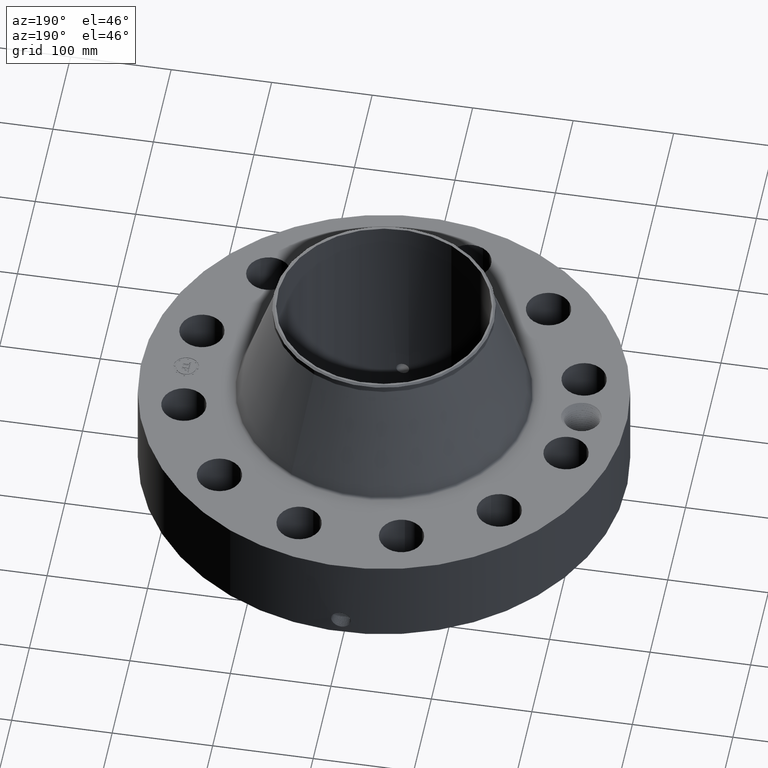
[diagram: clean part render]
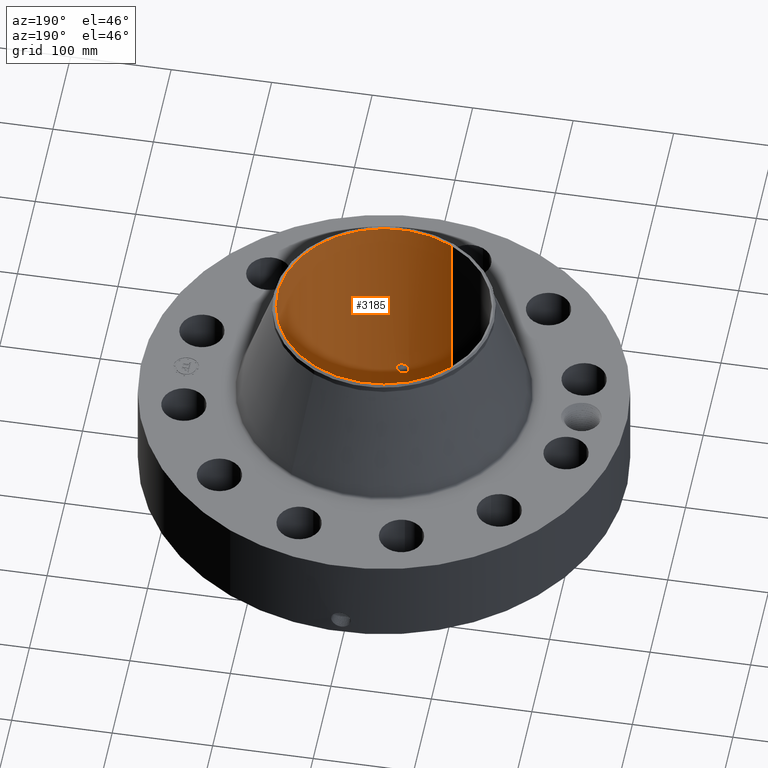
[diagram: same view with one face highlighted and labeled with its STEP entity id]
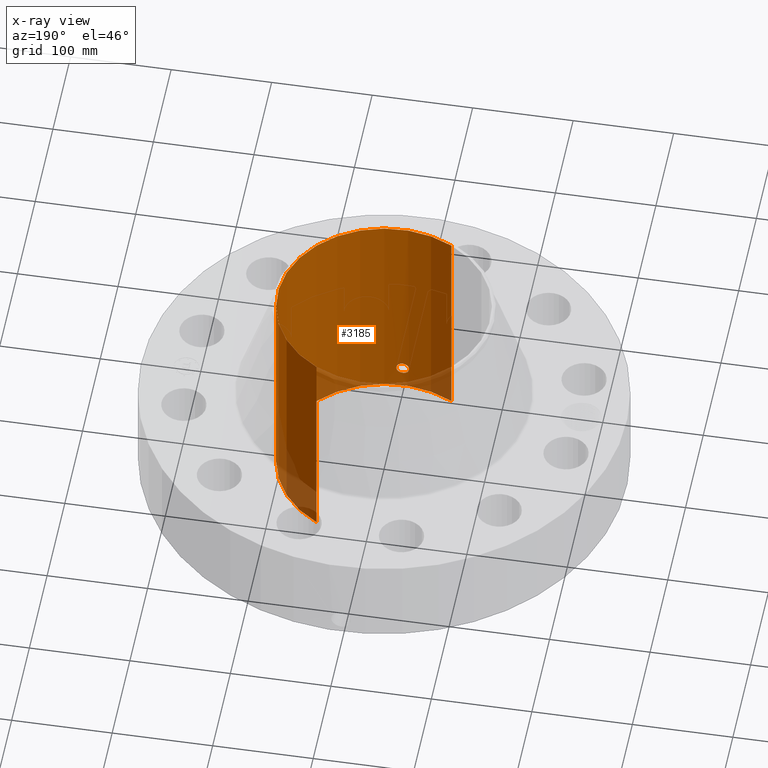
[diagram: x-ray of the same camera — body ghosted, the highlighted face saturated]
A machine part, auxiliary view. The second image highlights one B-rep face of the part: STEP entity #3185.
The next image is the same camera in x-ray: the body ghosted, the highlighted face saturated — about 11% of this face is hidden behind the body in this view.
In plain terms, the highlighted cylindrical surface (partial cylindrical patch) has radius 105.778 mm, axis along (0, 0, -1).
Its self-contained STEP definition (entity closure, byte-faithful):
#2404=AXIS2_PLACEMENT_3D('Circle Axis2P3D',#2402,#2403,$) ;
#3116=AXIS2_PLACEMENT_3D('Cylinder Axis2P3D',#3113,#3114,#3115) ;
#3120=AXIS2_PLACEMENT_3D('Circle Axis2P3D',#3118,#3119,$) ;
#2402=CARTESIAN_POINT('Axis2P3D Location',(0.,0.,0.)) ;
#2406=CARTESIAN_POINT('Vertex',(1.99656765553,3.65469257901,-8.95171950564E-015)) ;
#2408=CARTESIAN_POINT('Vertex',(-1.99656765553,-3.65469257901,-8.95171950564E-015)) ;
#3113=CARTESIAN_POINT('Axis2P3D Location',(0.,0.,4.31500000002)) ;
#3118=CARTESIAN_POINT('Axis2P3D Location',(0.,0.,8.63000000003)) ;
#3122=CARTESIAN_POINT('Vertex',(1.99656765553,3.65469257901,8.63000000003)) ;
#3124=CARTESIAN_POINT('Vertex',(-1.99656765553,-3.65469257901,8.63000000003)) ;
#3127=CARTESIAN_POINT('Line Origine',(1.99656765553,3.65469257901,4.31500000002)) ;
#3132=CARTESIAN_POINT('Line Origine',(-1.99656765553,-3.65469257901,4.31500000002)) ;
#3144=CARTESIAN_POINT('Control Point',(0.219395640473,-4.15871684574,0.820143615352)) ;
#3145=CARTESIAN_POINT('Control Point',(0.206921868354,-4.15937490719,0.797310528645)) ;
#3146=CARTESIAN_POINT('Control Point',(0.191479061033,-4.16014270401,0.776102617376)) ;
#3147=CARTESIAN_POINT('Control Point',(0.173347293503,-4.1609608761,0.757032094183)) ;
#3148=CARTESIAN_POINT('Control Point',(0.112151243799,-4.16332681788,0.707561238788)) ;
#3149=CARTESIAN_POINT('Control Point',(0.0350073360039,-4.16486395592,0.6840324709)) ;
#3150=CARTESIAN_POINT('Control Point',(-0.0195333765492,-4.16497917884,0.682387724784)) ;
#3151=CARTESIAN_POINT('Control Point',(-0.124110745814,-4.16328840941,0.70751621001)) ;
#3152=CARTESIAN_POINT('Control Point',(-0.203150856004,-4.15978664497,0.780396313961)) ;
#3153=CARTESIAN_POINT('Control Point',(-0.232136287454,-4.15806151485,0.8265933757)) ;
#3154=CARTESIAN_POINT('Control Point',(-0.2558280074,-4.15663977824,0.904756504111)) ;
#3155=CARTESIAN_POINT('Control Point',(-0.248304892346,-4.15709084731,0.984162375881)) ;
#3156=CARTESIAN_POINT('Control Point',(-0.242070589584,-4.15747019708,1.01076031077)) ;
#3157=CARTESIAN_POINT('Control Point',(-0.232329065941,-4.15803453501,1.03618190814)) ;
#3158=CARTESIAN_POINT('Control Point',(-0.219395640473,-4.15871684574,1.05985638466)) ;
#3159=CARTESIAN_POINT('Vertex',(0.219395640473,-4.15871684574,0.820143615352)) ;
#3161=CARTESIAN_POINT('Vertex',(-0.219395640473,-4.15871684574,1.05985638466)) ;
#3165=CARTESIAN_POINT('Control Point',(-0.219395640473,-4.15871684574,1.05985638466)) ;
#3166=CARTESIAN_POINT('Control Point',(-0.206921868349,-4.15937490719,1.08268947137)) ;
#3167=CARTESIAN_POINT('Control Point',(-0.191479061021,-4.16014270401,1.10389738265)) ;
#3168=CARTESIAN_POINT('Control Point',(-0.173347293526,-4.16096087609,1.1229679058)) ;
#3169=CARTESIAN_POINT('Control Point',(-0.112151243822,-4.16332681787,1.17243876121)) ;
#3170=CARTESIAN_POINT('Control Point',(-0.0350073360224,-4.16486395592,1.1959675291)) ;
#3171=CARTESIAN_POINT('Control Point',(0.0195333765499,-4.16497917884,1.19761227522)) ;
#3172=CARTESIAN_POINT('Control Point',(0.124110745813,-4.16328840941,1.17248379)) ;
#3173=CARTESIAN_POINT('Control Point',(0.203150856004,-4.15978664497,1.09960368605)) ;
#3174=CARTESIAN_POINT('Control Point',(0.232136287449,-4.15806151485,1.05340662432)) ;
#3175=CARTESIAN_POINT('Control Point',(0.255828007399,-4.15663977824,0.975243495907)) ;
#3176=CARTESIAN_POINT('Control Point',(0.248304892347,-4.15709084731,0.895837624132)) ;
#3177=CARTESIAN_POINT('Control Point',(0.242070589585,-4.15747019708,0.869239689245)) ;
#3178=CARTESIAN_POINT('Control Point',(0.232329065942,-4.15803453501,0.843818091872)) ;
#3179=CARTESIAN_POINT('Control Point',(0.219395640473,-4.15871684574,0.820143615352)) ;
#2403=DIRECTION('Axis2P3D Direction',(0.,0.,-0.0393700787402)) ;
#3114=DIRECTION('Axis2P3D Direction',(0.,0.,-0.0393700787402)) ;
#3115=DIRECTION('Axis2P3D XDirection',(-0.0188750212049,-0.0345504945626,0.)) ;
#3119=DIRECTION('Axis2P3D Direction',(0.,0.,-0.0393700787402)) ;
#3128=DIRECTION('Vector Direction',(0.,0.,-0.0393700787402)) ;
#3133=DIRECTION('Vector Direction',(0.,0.,-0.0393700787402)) ;
#3129=VECTOR('Line Direction',#3128,0.0393700787402) ;
#3134=VECTOR('Line Direction',#3133,0.0393700787402) ;
#3138=ORIENTED_EDGE('',*,*,#3126,.F.) ;
#3139=ORIENTED_EDGE('',*,*,#3131,.T.) ;
#3140=ORIENTED_EDGE('',*,*,#2410,.T.) ;
#3141=ORIENTED_EDGE('',*,*,#3136,.F.) ;
#3182=ORIENTED_EDGE('',*,*,#3163,.F.) ;
#3183=ORIENTED_EDGE('',*,*,#3180,.F.) ;
#3184=FACE_BOUND('',#3181,.T.) ;
#3185=ADVANCED_FACE('PartBody',(#3142,#3184),#3117,.F.) ;
#3143=B_SPLINE_CURVE_WITH_KNOTS('',5,(#3144,#3145,#3146,#3147,#3148,#3149,#3150,#3151,#3152,#3153,#3154,#3155,#3156,#3157,#3158),.UNSPECIFIED.,.F.,.U.,(6,3,3,3,6),(0.,4.6744898966,14.0215946123,23.3715523657,28.2182952834),.UNSPECIFIED.) ;
#3164=B_SPLINE_CURVE_WITH_KNOTS('',5,(#3165,#3166,#3167,#3168,#3169,#3170,#3171,#3172,#3173,#3174,#3175,#3176,#3177,#3178,#3179),.UNSPECIFIED.,.F.,.U.,(6,3,3,3,6),(0.,4.6744898985,14.0215946134,23.3715523673,28.2182952853),.UNSPECIFIED.) ;
#2405=CIRCLE('generated circle',#2404,4.16450000002) ;
#3121=CIRCLE('generated circle',#3120,4.16450000002) ;
#3117=CYLINDRICAL_SURFACE('generated cylinder',#3116,4.16450000002) ;
#2410=EDGE_CURVE('',#2407,#2409,#2405,.T.) ;
#3126=EDGE_CURVE('',#3123,#3125,#3121,.T.) ;
#3131=EDGE_CURVE('',#3123,#2407,#3130,.T.) ;
#3136=EDGE_CURVE('',#3125,#2409,#3135,.T.) ;
#3163=EDGE_CURVE('',#3160,#3162,#3143,.T.) ;
#3180=EDGE_CURVE('',#3162,#3160,#3164,.T.) ;
#3137=EDGE_LOOP('',(#3138,#3139,#3140,#3141)) ;
#3181=EDGE_LOOP('',(#3182,#3183)) ;
#3142=FACE_OUTER_BOUND('',#3137,.T.) ;
#3130=LINE('Line',#3127,#3129) ;
#3135=LINE('Line',#3132,#3134) ;
#2407=VERTEX_POINT('',#2406) ;
#2409=VERTEX_POINT('',#2408) ;
#3123=VERTEX_POINT('',#3122) ;
#3125=VERTEX_POINT('',#3124) ;
#3160=VERTEX_POINT('',#3159) ;
#3162=VERTEX_POINT('',#3161) ;